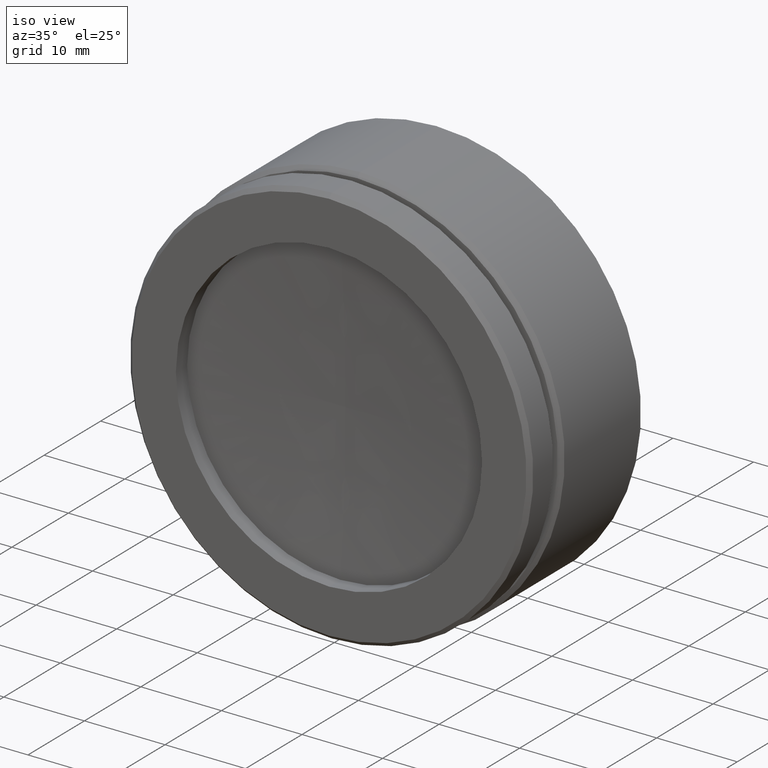
[diagram: clean part render]
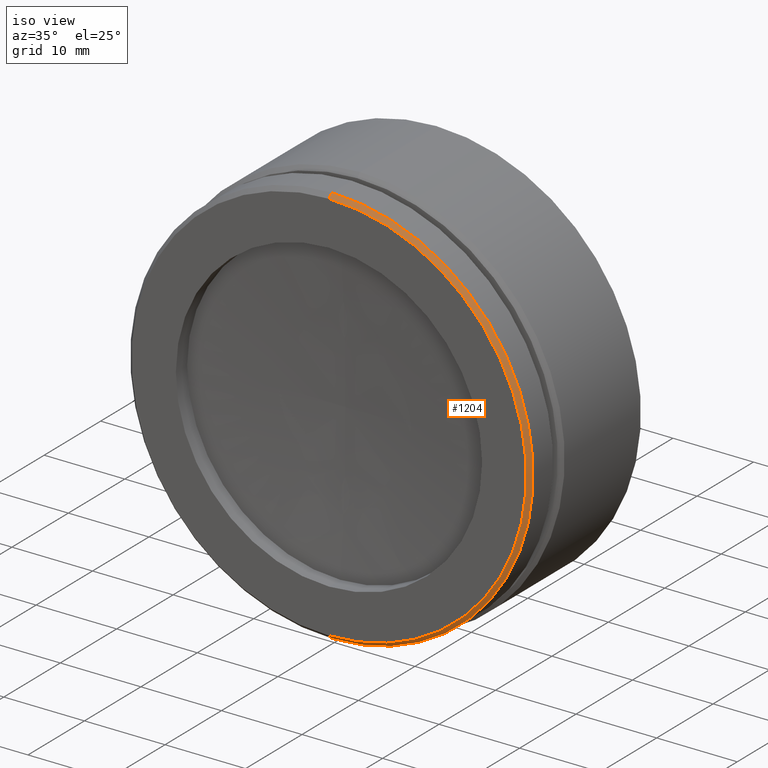
[diagram: same view with one face highlighted and labeled with its STEP entity id]
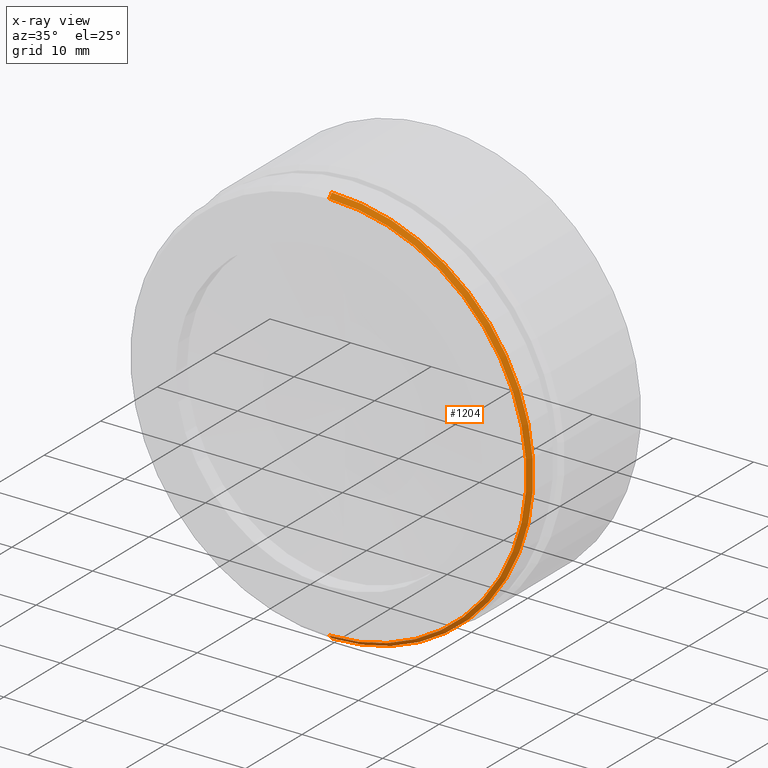
[diagram: x-ray of the same camera — body ghosted, the highlighted face saturated]
A machine part, iso view. The second image highlights one B-rep face of the part: STEP entity #1204.
The next image is the same camera in x-ray: the body ghosted, the highlighted face saturated — about 0% of this face is hidden behind the body in this view.
In plain terms, the highlighted conical surface has half-angle 45 deg.
Its self-contained STEP definition (entity closure, byte-faithful):
#16 = CIRCLE ( 'NONE', #236, 25.00000000000000000 ) ;
#32 = VERTEX_POINT ( 'NONE', #847 ) ;
#91 = ORIENTED_EDGE ( 'NONE', *, *, #1105, .T. ) ;
#236 = AXIS2_PLACEMENT_3D ( 'NONE', #238, #364, #910 ) ;
#238 = CARTESIAN_POINT ( 'NONE',  ( -8.905217641199440592, -21.99899378910162184, 26.65036394347454873 ) ) ;
#292 = CIRCLE ( 'NONE', #1573, 24.50000000000000000 ) ;
#306 = CARTESIAN_POINT ( 'NONE',  ( -8.905217641199440592, -22.49899378910162184, 26.65036394347454873 ) ) ;
#364 = DIRECTION ( 'NONE',  ( 0.000000000000000000, -1.000000000000000000, 0.000000000000000000 ) ) ;
#415 = DIRECTION ( 'NONE',  ( 0.000000000000000000, 0.000000000000000000, -1.000000000000000000 ) ) ;
#682 = LINE ( 'NONE', #1584, #1639 ) ;
#746 = DIRECTION ( 'NONE',  ( 0.000000000000000000, 1.000000000000000000, 0.000000000000000000 ) ) ;
#844 = DIRECTION ( 'NONE',  ( 0.000000000000000000, -1.000000000000000000, 0.000000000000000000 ) ) ;
#847 = CARTESIAN_POINT ( 'NONE',  ( -8.905217641199440592, -21.99899378910162184, 51.65036394347455229 ) ) ;
#875 = DIRECTION ( 'NONE',  ( 8.659560562354948882E-17, 0.7071067811865460184, -0.7071067811865489050 ) ) ;
#908 = ORIENTED_EDGE ( 'NONE', *, *, #1430, .F. ) ;
#910 = DIRECTION ( 'NONE',  ( 0.000000000000000000, 0.000000000000000000, -1.000000000000000000 ) ) ;
#975 = VECTOR ( 'NONE', #875, 1000.000000000000114 ) ;
#1027 = ORIENTED_EDGE ( 'NONE', *, *, #1667, .T. ) ;
#1037 = LINE ( 'NONE', #1167, #975 ) ;
#1105 = EDGE_CURVE ( 'NONE', #1568, #1634, #1037, .T. ) ;
#1141 = DIRECTION ( 'NONE',  ( 0.000000000000000000, 0.000000000000000000, 1.000000000000000000 ) ) ;
#1164 = CARTESIAN_POINT ( 'NONE',  ( -8.905217641199437040, -21.99899378910162184, 1.650363943474546957 ) ) ;
#1167 = CARTESIAN_POINT ( 'NONE',  ( -8.905217641199437040, -22.49899378910162184, 2.150363943474547401 ) ) ;
#1204 = ADVANCED_FACE ( 'NONE', ( #1570 ), #1418, .T. ) ;
#1223 = VERTEX_POINT ( 'NONE', #1280 ) ;
#1271 = CARTESIAN_POINT ( 'NONE',  ( -8.905217641199440592, -22.49899378910162184, 26.65036394347454873 ) ) ;
#1280 = CARTESIAN_POINT ( 'NONE',  ( -8.905217641199440592, -22.49899378910162184, 51.15036394347455229 ) ) ;
#1297 = EDGE_CURVE ( 'NONE', #1223, #32, #682, .T. ) ;
#1336 = AXIS2_PLACEMENT_3D ( 'NONE', #1271, #746, #1141 ) ;
#1396 = ORIENTED_EDGE ( 'NONE', *, *, #1297, .F. ) ;
#1418 = CONICAL_SURFACE ( 'NONE', #1336, 24.50000000000000355, 0.7853981633974503884 ) ;
#1430 = EDGE_CURVE ( 'NONE', #1568, #1223, #292, .T. ) ;
#1527 = CARTESIAN_POINT ( 'NONE',  ( -8.905217641199437040, -22.49899378910162184, 2.150363943474547401 ) ) ;
#1568 = VERTEX_POINT ( 'NONE', #1527 ) ;
#1570 = FACE_OUTER_BOUND ( 'NONE', #1695, .T. ) ;
#1573 = AXIS2_PLACEMENT_3D ( 'NONE', #306, #844, #415 ) ;
#1584 = CARTESIAN_POINT ( 'NONE',  ( -8.905217641199440592, -22.49899378910162184, 51.15036394347455229 ) ) ;
#1597 = DIRECTION ( 'NONE',  ( 0.000000000000000000, 0.7071067811865460184, 0.7071067811865489050 ) ) ;
#1634 = VERTEX_POINT ( 'NONE', #1164 ) ;
#1639 = VECTOR ( 'NONE', #1597, 1000.000000000000114 ) ;
#1667 = EDGE_CURVE ( 'NONE', #1634, #32, #16, .T. ) ;
#1695 = EDGE_LOOP ( 'NONE', ( #908, #91, #1027, #1396 ) ) ;